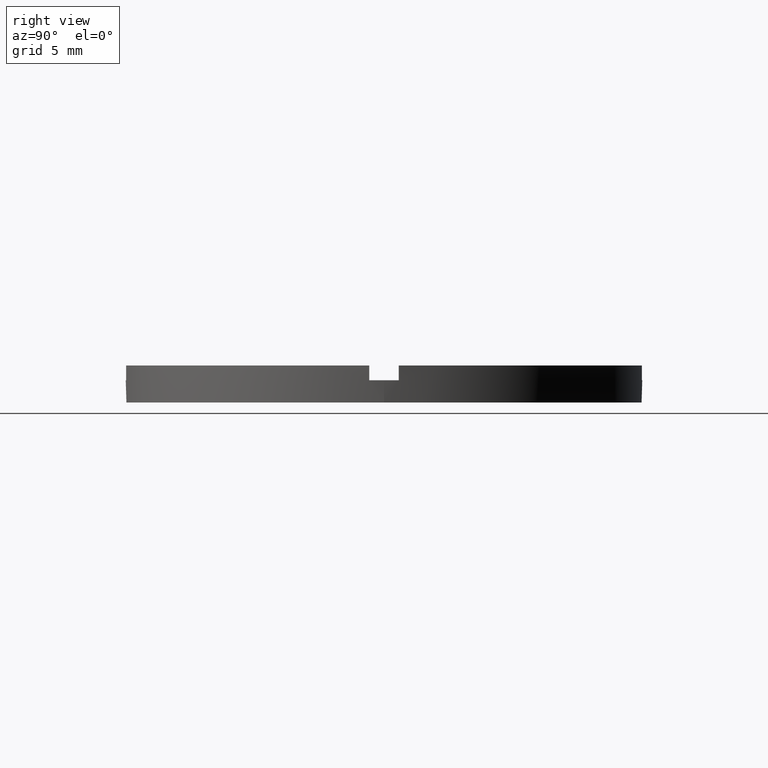
[diagram: clean part render]
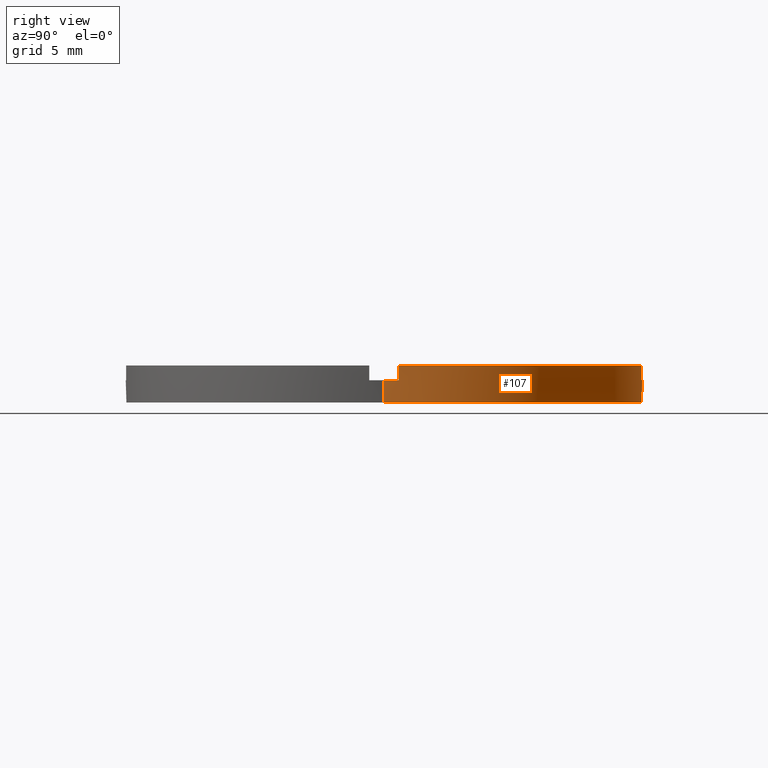
[diagram: same view with one face highlighted and labeled with its STEP entity id]
A machine part, right view. The second image highlights one B-rep face of the part: STEP entity #107.
In plain terms, the highlighted cylindrical surface (partial cylindrical patch) has radius 17.5 mm, axis along (-0, -0, -1).
Its self-contained STEP definition (entity closure, byte-faithful):
#10 = DIRECTION ( 'NONE',  ( 0.000000000000000000, 0.000000000000000000, 1.000000000000000000 ) ) ;
#17 = CARTESIAN_POINT ( 'NONE',  ( 17.47140520965616162, 0.9999999999998411271, 2.500000000000000000 ) ) ;
#18 = LINE ( 'NONE', #53, #542 ) ;
#22 = CIRCLE ( 'NONE', #774, 17.50000000000000355 ) ;
#29 = DIRECTION ( 'NONE',  ( 0.000000000000000000, 0.000000000000000000, 1.000000000000000000 ) ) ;
#31 = AXIS2_PLACEMENT_3D ( 'NONE', #316, #311, #778 ) ;
#32 = VECTOR ( 'NONE', #233, 1000.000000000000000 ) ;
#44 = VECTOR ( 'NONE', #333, 1000.000000000000000 ) ;
#48 = DIRECTION ( 'NONE',  ( -0.000000000000000000, -0.000000000000000000, -1.000000000000000000 ) ) ;
#49 = AXIS2_PLACEMENT_3D ( 'NONE', #428, #10, #668 ) ;
#53 = CARTESIAN_POINT ( 'NONE',  ( 17.50000000000000355, 2.143131898507868643E-15, 2.500000000000000000 ) ) ;
#56 = CARTESIAN_POINT ( 'NONE',  ( 0.000000000000000000, 0.000000000000000000, 2.500000000000000000 ) ) ;
#67 = DIRECTION ( 'NONE',  ( 0.000000000000000000, 0.000000000000000000, 1.000000000000000000 ) ) ;
#72 = DIRECTION ( 'NONE',  ( 1.000000000000000000, 0.000000000000000000, 0.000000000000000000 ) ) ;
#82 = DIRECTION ( 'NONE',  ( -0.000000000000000000, -0.000000000000000000, -1.000000000000000000 ) ) ;
#85 = DIRECTION ( 'NONE',  ( 1.000000000000000000, 0.000000000000000000, 0.000000000000000000 ) ) ;
#89 = EDGE_CURVE ( 'NONE', #213, #169, #683, .T. ) ;
#95 = CARTESIAN_POINT ( 'NONE',  ( -17.47140520965615096, 0.9999999999999763522, 1.500000000000000000 ) ) ;
#96 = DIRECTION ( 'NONE',  ( 0.000000000000000000, 0.000000000000000000, 1.000000000000000000 ) ) ;
#103 = EDGE_CURVE ( 'NONE', #472, #490, #165, .T. ) ;
#107 = ADVANCED_FACE ( 'NONE', ( #149 ), #658, .T. ) ;
#122 = LINE ( 'NONE', #383, #397 ) ;
#149 = FACE_OUTER_BOUND ( 'NONE', #530, .T. ) ;
#157 = DIRECTION ( 'NONE',  ( 1.000000000000000000, 0.000000000000000000, 0.000000000000000000 ) ) ;
#165 = CIRCLE ( 'NONE', #31, 17.50000000000000355 ) ;
#166 = AXIS2_PLACEMENT_3D ( 'NONE', #56, #185, #491 ) ;
#169 = VERTEX_POINT ( 'NONE', #639 ) ;
#171 = CARTESIAN_POINT ( 'NONE',  ( -1.000000000000025091, 17.47140520965615096, 2.500000000000000000 ) ) ;
#175 = DIRECTION ( 'NONE',  ( -0.000000000000000000, -0.000000000000000000, -1.000000000000000000 ) ) ;
#181 = LINE ( 'NONE', #171, #692 ) ;
#185 = DIRECTION ( 'NONE',  ( -0.000000000000000000, -0.000000000000000000, -1.000000000000000000 ) ) ;
#190 = EDGE_CURVE ( 'NONE', #748, #440, #181, .T. ) ;
#211 = ORIENTED_EDGE ( 'NONE', *, *, #633, .T. ) ;
#213 = VERTEX_POINT ( 'NONE', #582 ) ;
#218 = CARTESIAN_POINT ( 'NONE',  ( 0.9999999999999744649, 17.47140520965614741, 1.500000000000000000 ) ) ;
#219 = ORIENTED_EDGE ( 'NONE', *, *, #598, .F. ) ;
#233 = DIRECTION ( 'NONE',  ( -0.000000000000000000, -0.000000000000000000, -1.000000000000000000 ) ) ;
#235 = AXIS2_PLACEMENT_3D ( 'NONE', #382, #29, #72 ) ;
#243 = ORIENTED_EDGE ( 'NONE', *, *, #103, .F. ) ;
#244 = AXIS2_PLACEMENT_3D ( 'NONE', #724, #346, #412 ) ;
#245 = CARTESIAN_POINT ( 'NONE',  ( 17.50000000000000355, 2.143131898507868643E-15, 1.500000000000000000 ) ) ;
#248 = ORIENTED_EDGE ( 'NONE', *, *, #318, .T. ) ;
#266 = VERTEX_POINT ( 'NONE', #423 ) ;
#270 = CARTESIAN_POINT ( 'NONE',  ( -1.000000000000024647, 17.47140520965614741, 1.500000000000000000 ) ) ;
#287 = CARTESIAN_POINT ( 'NONE',  ( 0.9999999999999749090, 17.47140520965615096, 2.500000000000000000 ) ) ;
#298 = CARTESIAN_POINT ( 'NONE',  ( -1.000000000000024647, 17.47140520965614741, 2.500000000000000000 ) ) ;
#307 = LINE ( 'NONE', #287, #44 ) ;
#311 = DIRECTION ( 'NONE',  ( 0.000000000000000000, 0.000000000000000000, 1.000000000000000000 ) ) ;
#315 = CARTESIAN_POINT ( 'NONE',  ( -17.50000000000000355, 0.000000000000000000, 1.500000000000000000 ) ) ;
#316 = CARTESIAN_POINT ( 'NONE',  ( 0.000000000000000000, 0.000000000000000000, 2.500000000000000000 ) ) ;
#318 = EDGE_CURVE ( 'NONE', #677, #535, #122, .T. ) ;
#330 = CARTESIAN_POINT ( 'NONE',  ( 0.9999999999999744649, 17.47140520965614741, 2.500000000000000000 ) ) ;
#333 = DIRECTION ( 'NONE',  ( 0.000000000000000000, 0.000000000000000000, 1.000000000000000000 ) ) ;
#346 = DIRECTION ( 'NONE',  ( 0.000000000000000000, -0.000000000000000000, 1.000000000000000000 ) ) ;
#360 = EDGE_CURVE ( 'NONE', #493, #440, #638, .T. ) ;
#376 = EDGE_CURVE ( 'NONE', #695, #213, #18, .T. ) ;
#382 = CARTESIAN_POINT ( 'NONE',  ( 0.000000000000000000, 0.000000000000000000, 1.500000000000000000 ) ) ;
#383 = CARTESIAN_POINT ( 'NONE',  ( -17.47140520965615096, 0.9999999999999763522, 2.500000000000000000 ) ) ;
#391 = ORIENTED_EDGE ( 'NONE', *, *, #551, .F. ) ;
#395 = LINE ( 'NONE', #476, #655 ) ;
#397 = VECTOR ( 'NONE', #617, 1000.000000000000000 ) ;
#408 = ORIENTED_EDGE ( 'NONE', *, *, #190, .T. ) ;
#412 = DIRECTION ( 'NONE',  ( 1.000000000000000000, 0.000000000000000000, 0.000000000000000000 ) ) ;
#423 = CARTESIAN_POINT ( 'NONE',  ( 17.47140520965616162, 0.9999999999998411271, 1.500000000000000000 ) ) ;
#425 = CARTESIAN_POINT ( 'NONE',  ( 0.000000000000000000, 0.000000000000000000, 0.000000000000000000 ) ) ;
#428 = CARTESIAN_POINT ( 'NONE',  ( 0.000000000000000000, 0.000000000000000000, 2.500000000000000000 ) ) ;
#434 = EDGE_CURVE ( 'NONE', #748, #535, #560, .T. ) ;
#440 = VERTEX_POINT ( 'NONE', #270 ) ;
#449 = ORIENTED_EDGE ( 'NONE', *, *, #89, .T. ) ;
#456 = ORIENTED_EDGE ( 'NONE', *, *, #360, .F. ) ;
#467 = CARTESIAN_POINT ( 'NONE',  ( 0.000000000000000000, 0.000000000000000000, 1.500000000000000000 ) ) ;
#472 = VERTEX_POINT ( 'NONE', #17 ) ;
#476 = CARTESIAN_POINT ( 'NONE',  ( 17.47140520965616162, 0.9999999999998411271, 2.500000000000000000 ) ) ;
#490 = VERTEX_POINT ( 'NONE', #330 ) ;
#491 = DIRECTION ( 'NONE',  ( -1.000000000000000000, 0.000000000000000000, 0.000000000000000000 ) ) ;
#493 = VERTEX_POINT ( 'NONE', #218 ) ;
#501 = ORIENTED_EDGE ( 'NONE', *, *, #376, .T. ) ;
#523 = ORIENTED_EDGE ( 'NONE', *, *, #434, .F. ) ;
#530 = EDGE_LOOP ( 'NONE', ( #391, #501, #449, #719, #219, #248, #523, #408, #456, #211, #243, #672 ) ) ;
#531 = EDGE_CURVE ( 'NONE', #691, #169, #564, .T. ) ;
#535 = VERTEX_POINT ( 'NONE', #755 ) ;
#542 = VECTOR ( 'NONE', #175, 1000.000000000000000 ) ;
#551 = EDGE_CURVE ( 'NONE', #695, #266, #22, .T. ) ;
#555 = CIRCLE ( 'NONE', #235, 17.50000000000000355 ) ;
#560 = CIRCLE ( 'NONE', #49, 17.50000000000000355 ) ;
#564 = LINE ( 'NONE', #760, #32 ) ;
#582 = CARTESIAN_POINT ( 'NONE',  ( 17.50000000000000355, 2.143131898507868643E-15, 0.000000000000000000 ) ) ;
#598 = EDGE_CURVE ( 'NONE', #677, #691, #555, .T. ) ;
#617 = DIRECTION ( 'NONE',  ( 0.000000000000000000, 0.000000000000000000, 1.000000000000000000 ) ) ;
#633 = EDGE_CURVE ( 'NONE', #493, #490, #307, .T. ) ;
#638 = CIRCLE ( 'NONE', #244, 17.50000000000000355 ) ;
#639 = CARTESIAN_POINT ( 'NONE',  ( -17.50000000000000355, 0.000000000000000000, 0.000000000000000000 ) ) ;
#655 = VECTOR ( 'NONE', #48, 1000.000000000000000 ) ;
#658 = CYLINDRICAL_SURFACE ( 'NONE', #166, 17.50000000000000355 ) ;
#668 = DIRECTION ( 'NONE',  ( 1.000000000000000000, 0.000000000000000000, 0.000000000000000000 ) ) ;
#672 = ORIENTED_EDGE ( 'NONE', *, *, #730, .T. ) ;
#677 = VERTEX_POINT ( 'NONE', #95 ) ;
#683 = CIRCLE ( 'NONE', #712, 17.50000000000000355 ) ;
#691 = VERTEX_POINT ( 'NONE', #315 ) ;
#692 = VECTOR ( 'NONE', #82, 1000.000000000000000 ) ;
#695 = VERTEX_POINT ( 'NONE', #245 ) ;
#712 = AXIS2_PLACEMENT_3D ( 'NONE', #425, #96, #157 ) ;
#719 = ORIENTED_EDGE ( 'NONE', *, *, #531, .F. ) ;
#724 = CARTESIAN_POINT ( 'NONE',  ( 0.000000000000000000, 0.000000000000000000, 1.500000000000000000 ) ) ;
#730 = EDGE_CURVE ( 'NONE', #472, #266, #395, .T. ) ;
#748 = VERTEX_POINT ( 'NONE', #298 ) ;
#755 = CARTESIAN_POINT ( 'NONE',  ( -17.47140520965615096, 0.9999999999999763522, 2.500000000000000000 ) ) ;
#760 = CARTESIAN_POINT ( 'NONE',  ( -17.50000000000000355, 0.000000000000000000, 2.500000000000000000 ) ) ;
#774 = AXIS2_PLACEMENT_3D ( 'NONE', #467, #67, #85 ) ;
#778 = DIRECTION ( 'NONE',  ( 1.000000000000000000, 0.000000000000000000, 0.000000000000000000 ) ) ;